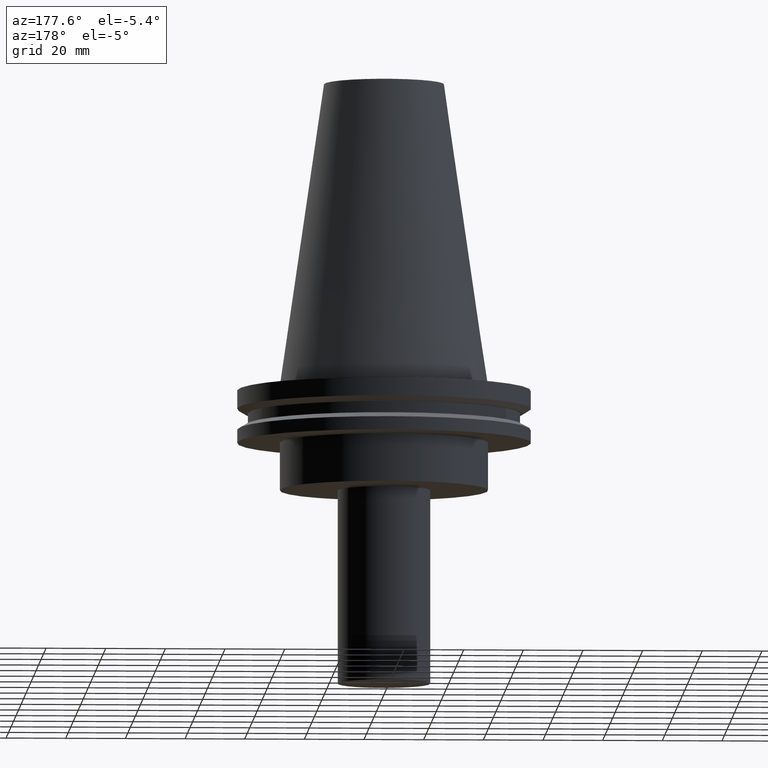
[diagram: clean part render]
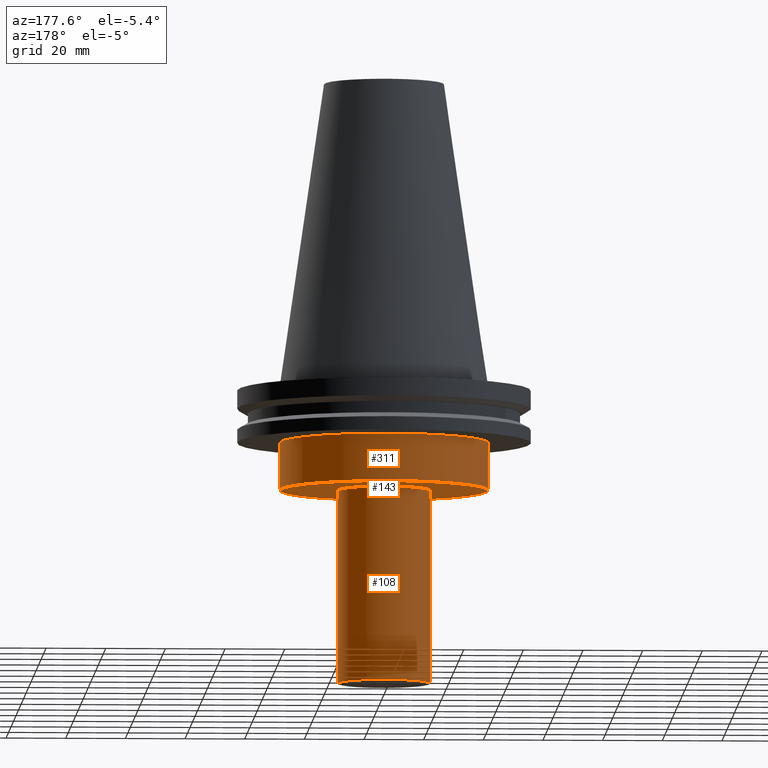
[diagram: same view with one multi-face feature highlighted, each face labeled with its STEP entity id]
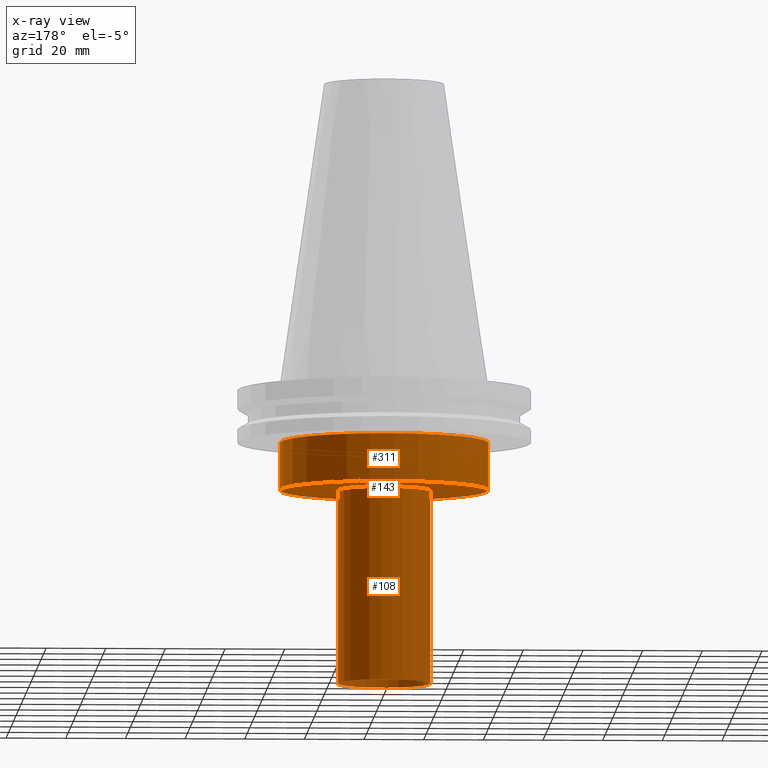
[diagram: x-ray of the same camera — body ghosted, the whole feature saturated]
A machine part, auxiliary view. The highlighted faces form ONE feature: a stepped (counterbored) hole: 2 coaxial cylindrical walls of radii 15.5 -> 34.925 mm joined by 1 annular planar shoulder face(s). The faces share edges in the B-rep.
The next image is the same camera in x-ray: the body ghosted and the whole hole feature saturated, so the bore chain is visible through the body.
Their STEP definitions:
[1] entity #311 (Cylinder):
#5 = DIRECTION ( 'NONE',  ( 1.000000000000000000, 0.000000000000000000, 0.000000000000000000 ) ) ;
#20 = CIRCLE ( 'NONE', #385, 34.92499999999999716 ) ;
#28 = DIRECTION ( 'NONE',  ( -0.000000000000000000, -0.000000000000000000, 1.000000000000000000 ) ) ;
#29 = ORIENTED_EDGE ( 'NONE', *, *, #197, .F. ) ;
#41 = CIRCLE ( 'NONE', #238, 34.92499999999999716 ) ;
#63 = FACE_OUTER_BOUND ( 'NONE', #235, .T. ) ;
#96 = DIRECTION ( 'NONE',  ( 1.000000000000000000, 0.000000000000000000, 0.000000000000000000 ) ) ;
#117 = EDGE_LOOP ( 'NONE', ( #314 ) ) ;
#155 = CARTESIAN_POINT ( 'NONE',  ( 34.92499999999999716, 0.000000000000000000, -19.04999999999999716 ) ) ;
#166 = CARTESIAN_POINT ( 'NONE',  ( 34.92499999999999716, 0.000000000000000000, -35.00000000000000000 ) ) ;
#182 = DIRECTION ( 'NONE',  ( -0.000000000000000000, -0.000000000000000000, 1.000000000000000000 ) ) ;
#197 = EDGE_CURVE ( 'NONE', #306, #306, #20, .T. ) ;
#206 = DIRECTION ( 'NONE',  ( 1.000000000000000000, 0.000000000000000000, 0.000000000000000000 ) ) ;
#218 = CARTESIAN_POINT ( 'NONE',  ( 0.000000000000000000, 0.000000000000000000, -35.00000000000000000 ) ) ;
#235 = EDGE_LOOP ( 'NONE', ( #29 ) ) ;
#238 = AXIS2_PLACEMENT_3D ( 'NONE', #218, #249, #96 ) ;
#249 = DIRECTION ( 'NONE',  ( -0.000000000000000000, -0.000000000000000000, 1.000000000000000000 ) ) ;
#265 = EDGE_CURVE ( 'NONE', #288, #288, #41, .T. ) ;
#271 = CYLINDRICAL_SURFACE ( 'NONE', #347, 34.92499999999999716 ) ;
#274 = CARTESIAN_POINT ( 'NONE',  ( 0.000000000000000000, 0.000000000000000000, 101.5999999999999943 ) ) ;
#288 = VERTEX_POINT ( 'NONE', #166 ) ;
#306 = VERTEX_POINT ( 'NONE', #155 ) ;
#310 = FACE_OUTER_BOUND ( 'NONE', #117, .T. ) ;
#311 = ADVANCED_FACE ( 'NONE', ( #63, #310 ), #271, .T. ) ;
#314 = ORIENTED_EDGE ( 'NONE', *, *, #265, .T. ) ;
#347 = AXIS2_PLACEMENT_3D ( 'NONE', #274, #182, #5 ) ;
#385 = AXIS2_PLACEMENT_3D ( 'NONE', #390, #28, #206 ) ;
#390 = CARTESIAN_POINT ( 'NONE',  ( 0.000000000000000000, 0.000000000000000000, -19.04999999999999716 ) ) ;
[2] entity #108 (Cylinder):
#53 = AXIS2_PLACEMENT_3D ( 'NONE', #216, #252, #344 ) ;
#56 = EDGE_LOOP ( 'NONE', ( #279 ) ) ;
#87 = AXIS2_PLACEMENT_3D ( 'NONE', #159, #241, #100 ) ;
#100 = DIRECTION ( 'NONE',  ( 1.000000000000000000, 0.000000000000000000, 0.000000000000000000 ) ) ;
#105 = AXIS2_PLACEMENT_3D ( 'NONE', #170, #140, #352 ) ;
#107 = CYLINDRICAL_SURFACE ( 'NONE', #105, 15.50000000000000000 ) ;
#108 = ADVANCED_FACE ( 'NONE', ( #255, #142 ), #107, .T. ) ;
#109 = CARTESIAN_POINT ( 'NONE',  ( 15.50000000000000000, 0.000000000000000000, -35.00000000000000000 ) ) ;
#138 = VERTEX_POINT ( 'NONE', #316 ) ;
#140 = DIRECTION ( 'NONE',  ( -0.000000000000000000, -0.000000000000000000, 1.000000000000000000 ) ) ;
#142 = FACE_OUTER_BOUND ( 'NONE', #56, .T. ) ;
#159 = CARTESIAN_POINT ( 'NONE',  ( 0.000000000000000000, 0.000000000000000000, -100.0000000000000000 ) ) ;
#162 = VERTEX_POINT ( 'NONE', #109 ) ;
#170 = CARTESIAN_POINT ( 'NONE',  ( 0.000000000000000000, 0.000000000000000000, 0.000000000000000000 ) ) ;
#210 = EDGE_LOOP ( 'NONE', ( #240 ) ) ;
#216 = CARTESIAN_POINT ( 'NONE',  ( 0.000000000000000000, 0.000000000000000000, -35.00000000000000000 ) ) ;
#234 = CIRCLE ( 'NONE', #87, 15.50000000000000000 ) ;
#240 = ORIENTED_EDGE ( 'NONE', *, *, #285, .F. ) ;
#241 = DIRECTION ( 'NONE',  ( -0.000000000000000000, -0.000000000000000000, 1.000000000000000000 ) ) ;
#252 = DIRECTION ( 'NONE',  ( -0.000000000000000000, -0.000000000000000000, 1.000000000000000000 ) ) ;
#255 = FACE_OUTER_BOUND ( 'NONE', #210, .T. ) ;
#279 = ORIENTED_EDGE ( 'NONE', *, *, #371, .T. ) ;
#285 = EDGE_CURVE ( 'NONE', #162, #162, #348, .T. ) ;
#316 = CARTESIAN_POINT ( 'NONE',  ( 15.50000000000000000, 0.000000000000000000, -100.0000000000000000 ) ) ;
#344 = DIRECTION ( 'NONE',  ( 1.000000000000000000, 0.000000000000000000, 0.000000000000000000 ) ) ;
#348 = CIRCLE ( 'NONE', #53, 15.50000000000000000 ) ;
#352 = DIRECTION ( 'NONE',  ( 1.000000000000000000, 0.000000000000000000, 0.000000000000000000 ) ) ;
#371 = EDGE_CURVE ( 'NONE', #138, #138, #234, .T. ) ;
[3] entity #143 (Plane):
#41 = CIRCLE ( 'NONE', #238, 34.92499999999999716 ) ;
#53 = AXIS2_PLACEMENT_3D ( 'NONE', #216, #252, #344 ) ;
#96 = DIRECTION ( 'NONE',  ( 1.000000000000000000, 0.000000000000000000, 0.000000000000000000 ) ) ;
#109 = CARTESIAN_POINT ( 'NONE',  ( 15.50000000000000000, 0.000000000000000000, -35.00000000000000000 ) ) ;
#110 = CARTESIAN_POINT ( 'NONE',  ( 0.000000000000000000, 34.92499999999999716, -35.00000000000000000 ) ) ;
#114 = FACE_BOUND ( 'NONE', #266, .T. ) ;
#115 = AXIS2_PLACEMENT_3D ( 'NONE', #110, #146, #363 ) ;
#139 = FACE_OUTER_BOUND ( 'NONE', #296, .T. ) ;
#143 = ADVANCED_FACE ( 'NONE', ( #114, #139 ), #257, .F. ) ;
#146 = DIRECTION ( 'NONE',  ( 0.000000000000000000, -0.000000000000000000, 1.000000000000000000 ) ) ;
#162 = VERTEX_POINT ( 'NONE', #109 ) ;
#166 = CARTESIAN_POINT ( 'NONE',  ( 34.92499999999999716, 0.000000000000000000, -35.00000000000000000 ) ) ;
#216 = CARTESIAN_POINT ( 'NONE',  ( 0.000000000000000000, 0.000000000000000000, -35.00000000000000000 ) ) ;
#218 = CARTESIAN_POINT ( 'NONE',  ( 0.000000000000000000, 0.000000000000000000, -35.00000000000000000 ) ) ;
#238 = AXIS2_PLACEMENT_3D ( 'NONE', #218, #249, #96 ) ;
#249 = DIRECTION ( 'NONE',  ( -0.000000000000000000, -0.000000000000000000, 1.000000000000000000 ) ) ;
#252 = DIRECTION ( 'NONE',  ( -0.000000000000000000, -0.000000000000000000, 1.000000000000000000 ) ) ;
#257 = PLANE ( 'NONE',  #115 ) ;
#265 = EDGE_CURVE ( 'NONE', #288, #288, #41, .T. ) ;
#266 = EDGE_LOOP ( 'NONE', ( #337 ) ) ;
#285 = EDGE_CURVE ( 'NONE', #162, #162, #348, .T. ) ;
#288 = VERTEX_POINT ( 'NONE', #166 ) ;
#296 = EDGE_LOOP ( 'NONE', ( #302 ) ) ;
#302 = ORIENTED_EDGE ( 'NONE', *, *, #265, .F. ) ;
#337 = ORIENTED_EDGE ( 'NONE', *, *, #285, .T. ) ;
#344 = DIRECTION ( 'NONE',  ( 1.000000000000000000, 0.000000000000000000, 0.000000000000000000 ) ) ;
#348 = CIRCLE ( 'NONE', #53, 15.50000000000000000 ) ;
#363 = DIRECTION ( 'NONE',  ( 1.000000000000000000, 0.000000000000000000, 0.000000000000000000 ) ) ;